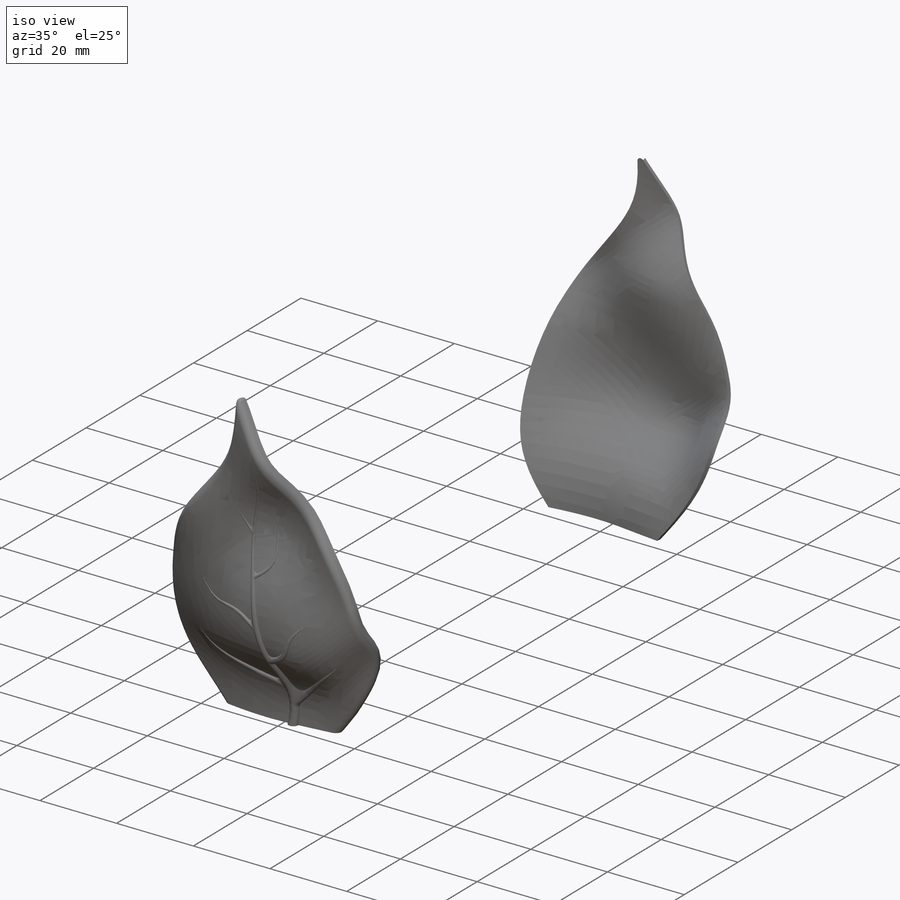
[diagram: iso view]
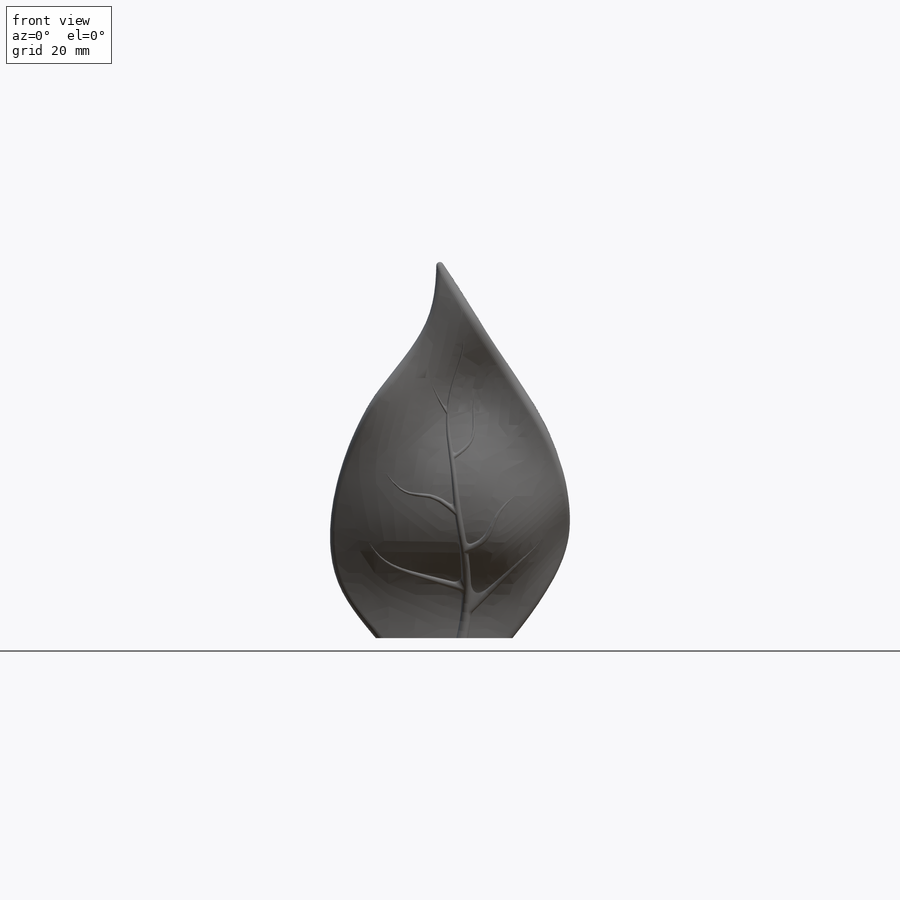
[diagram: front view]
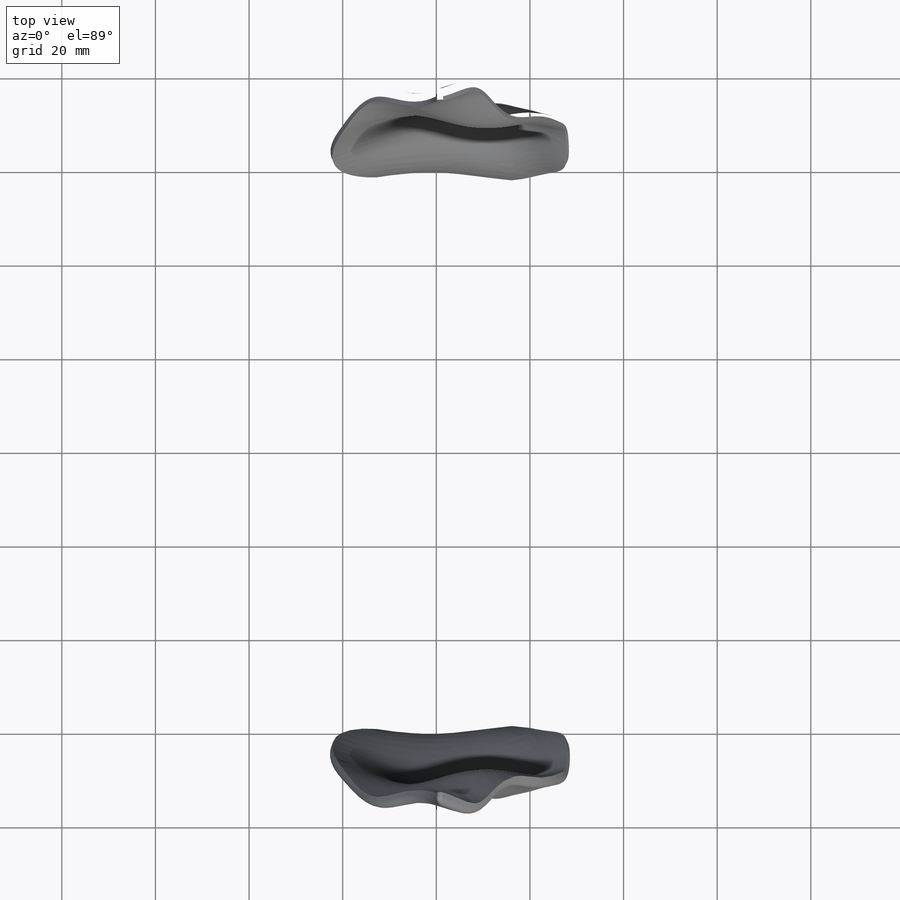
[diagram: top view]
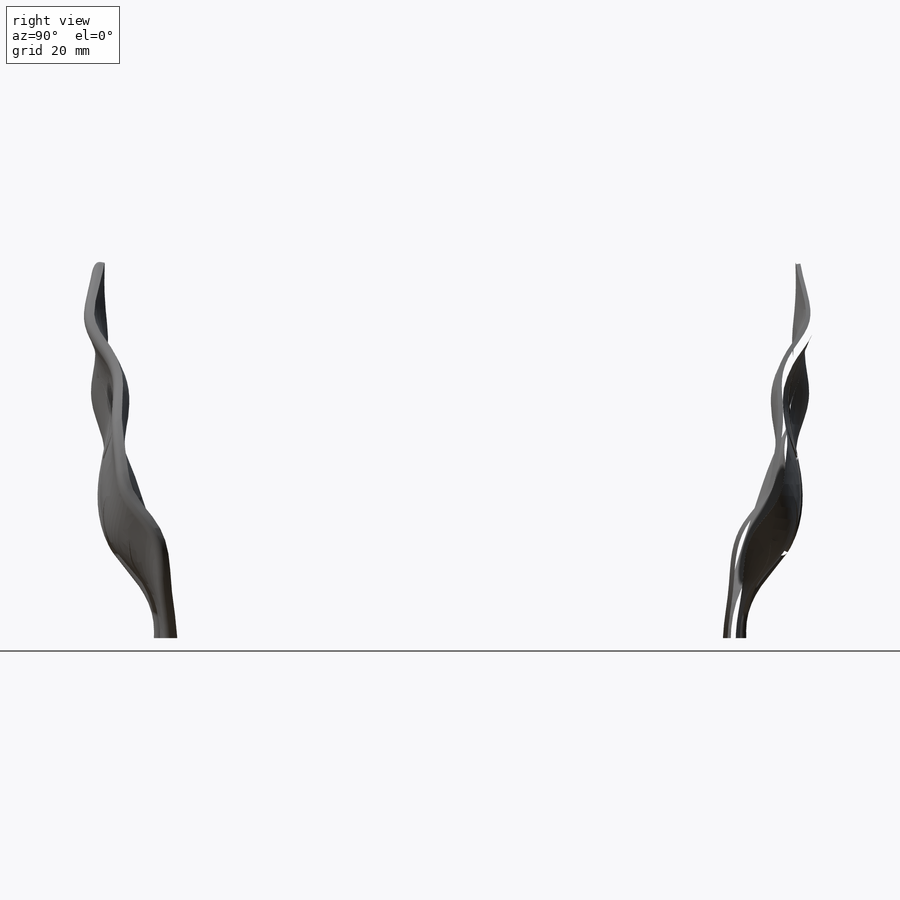
[diagram: right view]
SOLIDWORKS PART (.sldprt)
format: sldprt  version: not decoded by parser v0  size: 13,976,064 bytes
history: native  units: mm
features: sketch x58, plane x21, fillet x19, surface_op x7, boolean_combine x4, mirror x4, pattern_circular x4, revolve x3, move_body x3, cut_extrude x3, sweep x2, material x1, cut_revolve x1, delete_body x1, extrude x1 (+11 scaffold rows collapsed; 3 parser-record rows omitted)
feature tree (146):
  scaffold x11  (default folders/planes/origin — collapsed)
  material  "Tungsten"
  plane  "Front XY"
  plane  "Top XZ"
  plane  "Right YZ"
  sketch  "Sketch1"  dims[D4=~38.109044mm D1=127.0mm D2=50.8mm D3=6.35mm]
  parser-record x3  (decoder bookkeeping rows leaked as tree rows — omitted from the tree; the rows remain in map.json)
  sketch  "Sketch2"
  revolve  "Revolve1"  Angle=360deg
  sketch  "Sketch3"
  plane  "Plane1"
  sketch  "Sketch4"  dims[D1=19.05mm D2=12.7mm]
  sweep  "Sweep1"
  sketch  "Sketch5"  dims[D1=0.0mm]
  sketch  "Sketch6"  dims[D1=28.2357mm D2=~32.899248mm D3=30.48mm]
  sketch  "Sketch7"  dims[D1=78.74mm]
  plane  "Plane2"
  plane  "Plane3"
  plane  "Plane5"  Offset=14.118151mm
  sketch  "Sketch8"
  sketch  "Sketch9"
  sketch  "Sketch10"  dims[D1=12.7mm]
  plane  "Plane4"
  sketch  "Sketch11"
  sketch  "Sketch12"
  sketch  "Sketch13"
  sketch  "Sketch14"  dims[c1.D1=~60.714456mm c2.D1=~55.180484deg]
  plane  "Plane6"  Offset=139.7mm
  sketch  "Sketch15"
  sketch  "Sketch16"
  sketch  "3DSketch2"
  plane  "Plane7"
  sketch  "Sketch17"  dims[D1=2.54mm]
  sketch  "3DSketch3"
  plane  "Plane8"
  sketch  "Sketch18"  dims[D1=2.032mm]
  sketch  "3DSketch4"
  sketch  "3DSketch2<4>"
  plane  "Plane9"
  sketch  "3DSketch5"
  sketch  "Sketch19"  dims[D1=1.905mm]
  sketch  "3DSketch2<5>"
  plane  "Plane10"
  sketch  "Sketch20"  dims[D1=1.778mm]
  sketch  "3DSketch6"
  sketch  "3DSketch2<6>"
  plane  "Plane11"
  sketch  "Sketch21"  dims[D1=1.27mm]
  sketch  "3DSketch7"
  sketch  "3DSketch2<7>"
  plane  "Plane12"
  sketch  "Sketch22"  dims[D1=0.889mm]
  sketch  "3DSketch8"
  sketch  "3DSketch2<8>"
  plane  "Plane13"
  sketch  "Sketch23"  dims[D1=0.5842mm]
  sketch  "3DSketch9"
  sketch  "3DSketch2<9>"  dims[D1=2.54mm]
  move_body  "Body-Move/Copy1"
  boolean_combine  "Combine4"
  fillet  "Fillet1"  Radius=2.032mm
  fillet  "Fillet2"  Radius=1.524mm
  fillet  "Fillet3"  Radius=1.27mm
  fillet  "Fillet4"  Radius=0.889mm
  fillet  "Fillet5"  Radius=0.635mm
  fillet  "Fillet6"  Radius=0.635mm
  fillet  "Fillet7"  Radius=1.524mm
  fillet  "Fillet13"  Radius=0.635mm
  fillet  "Fillet21"  Radius=0.762mm
  mirror  "Mirror1"
  pattern_circular  "CirPattern1"  Count=3 Angle=360deg
  sketch  "Large Vine"
  move_body  "Body-Move/Copy2"
  sketch  "Sketch25"  dims[D1=~15.409394mm D2=~11.789324mm D3=~11.727418mm]
  cut_revolve  "Cut-Revolve1"  Angle=332deg
  sketch  "Sketch26"
  cut_extrude  "Cut-Extrude1"  [1 undecoded]
  sketch  "Small Vine"
  cut_extrude  "Wrap2"  Depth=3.175mm
  fillet  "Fillet8"  Radius=12.7mm
  fillet  "Fillet9"  Radius=1.524mm
  fillet  "Fillet10"  Radius=1.524mm
  fillet  "Fillet14"  Radius=0.762mm
  pattern_circular  "CirPattern3"  Count=3 Angle=106deg
  fillet  "Fillet11"  [1 undecoded]
  fillet  "Fillet12"  [1 undecoded]
  boolean_combine  "Combine5"
  sketch  "Sketch28"  dims[c1.D1=~3.494024mm c1.D2=3.048mm c2.D1=~6.988049mm c3.D1=90.0deg c4.D1=2.54mm]
  revolve  "Revolve2"  Angle=360deg
  mirror  "Mirror3"
  pattern_circular  "CirPattern5"  Count=74 Angle=4.864865deg
  sketch  "Sketch29"  dims[c1.D2=0.254mm c1.D1=2.54mm c2.D2=25.4mm c2.D3=6.35mm c2.D4=~15.112602mm c3.D4=4.0deg]
  revolve  "Revolve3"  Angle=360deg
  sketch  "Sketch30"  dims[D1=38.1mm]
  plane  "Plane14"
  sketch  "Sketch31"  dims[D1=12.7mm]
  sketch  "Sketch32"  dims[D1=11.43mm]
  plane  "Plane15"
  sketch  "Sketch33"  dims[D2=25.4mm D1=11.43mm]
  plane  "Plane16"
  plane  "Plane17"
  sketch  "Sketch34"  dims[D1=25.4mm D2=11.43mm]
  sketch  "Sketch35"  dims[D1=~19.056837mm D2=11.43mm]
  sweep  "Boundary-Surface1"
  sketch  "Sketch36"  dims[D1=4.699mm]
  surface_op  "Surface-Extrude3"
  sketch  "Sketch37"
  plane  "Plane18"
  sketch  "Sketch39"
  sketch  "Sketch40"  dims[D1=1080.0deg]
  move_body  "Body-Move/Copy3"
  sketch  "3DSketch10"
  sketch  "3DSketch11"
  mirror  "Surface-Extrude4"
  sketch  "Sketch41"
  surface_op  "Surface-Sweep2"
  delete_body  "Body-Delete2"
  surface_op  "Surface-Knit3"
  surface_op  "Surface-Knit4"
  surface_op  "Surface-Knit5"
  surface_op  "Surface-Knit6"
  mirror  "Mirror5"
  surface_op  "Surface-Knit7"
  boolean_combine  "Combine6"
  sketch  "Sketch42"
  cut_extrude  "Extrude1"  [1 undecoded]
  fillet  "Fillet17"  Radius=2.032mm
  fillet  "Fillet18"  Radius=0.889mm
  fillet  "Fillet19"  Radius=0.889mm
  fillet  "Fillet20"  Radius=0.508mm
  pattern_circular  "CirPattern6"  Count=3 Angle=120deg
  boolean_combine  "Combine7"
  sketch  "Sketch43"
  extrude  "delete"  Depth=239.776mm
decode coverage: 53 of 110 modeling features carry decoded parameters
note: ~ marks probable driven/reference dimensions
note: 4 parameter values undecoded
summary: no parameter record found for 4 features
note: suppression state not decoded; provenance and decode notes live in map.json
